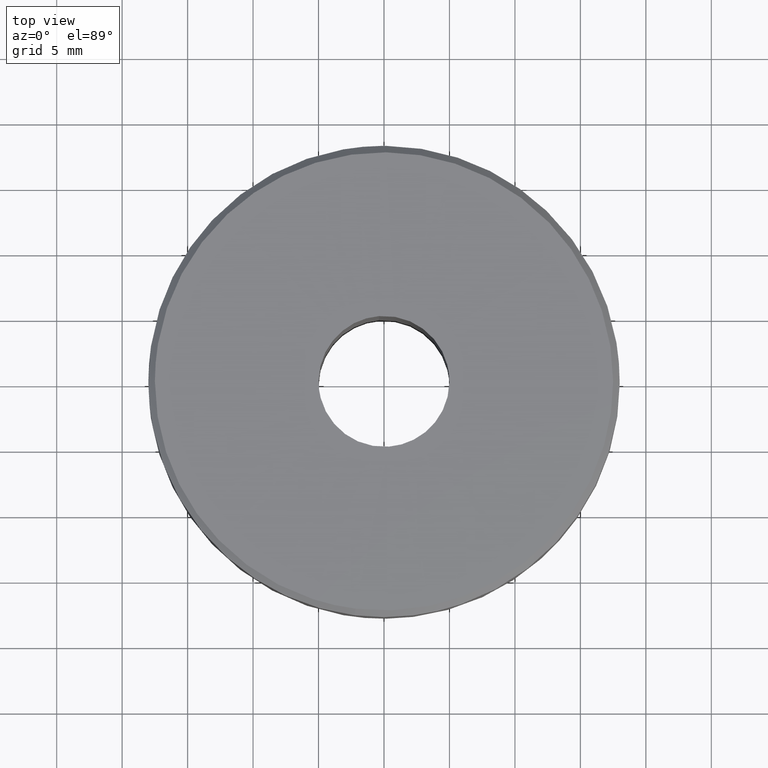
[diagram: clean part render]
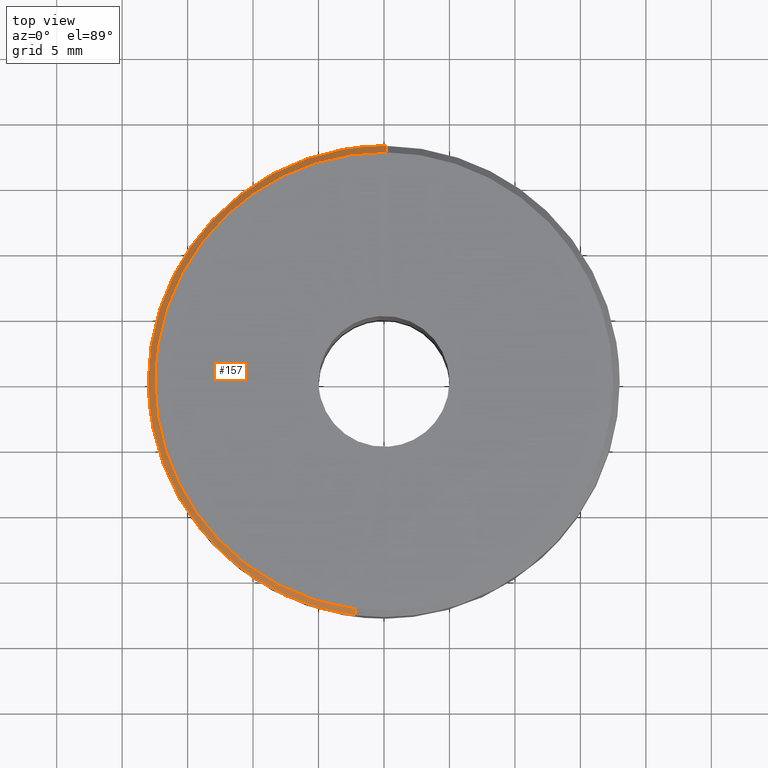
[diagram: same view with one face highlighted and labeled with its STEP entity id]
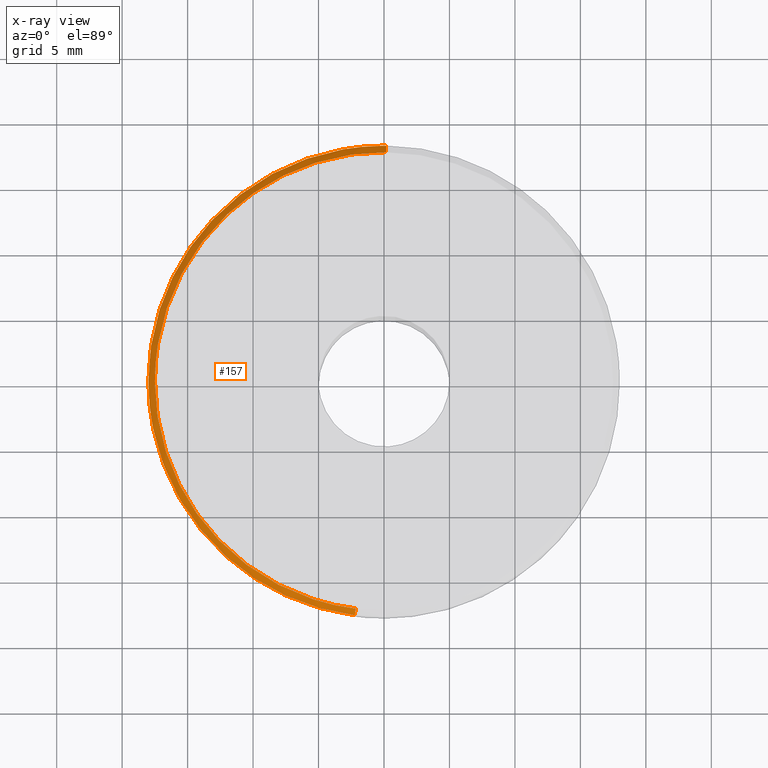
[diagram: x-ray of the same camera — body ghosted, the highlighted face saturated]
A machine part, top view. The second image highlights one B-rep face of the part: STEP entity #157.
The next image is the same camera in x-ray: the body ghosted, the highlighted face saturated — about 0% of this face is hidden behind the body in this view.
In plain terms, the highlighted face is a freeform B-spline surface patch.
Its self-contained STEP definition (entity closure, byte-faithful):
#44=CARTESIAN_POINT('',(-2.170688436371020,-17.352255414274158,23.012499999999999));
#45=CARTESIAN_POINT('',(-17.622727873411552,-15.419275376604753,23.012500000000006));
#46=CARTESIAN_POINT('',(-17.486834129584739,0.152605289527814,23.012499999999999));
#47=CARTESIAN_POINT('',(-17.334228840056934,17.639439419112552,23.012500000000006));
#48=CARTESIAN_POINT('',(0.152605289527814,17.486834129584739,23.012499999999999));
#49=CARTESIAN_POINT('',(-2.235894427463576,-17.873505259724336,22.487187500000001));
#50=CARTESIAN_POINT('',(-18.152102525934822,-15.882459828142810,22.487187500000001));
#51=CARTESIAN_POINT('',(-18.012126627294339,0.157189447706803,22.487187500000001));
#52=CARTESIAN_POINT('',(-17.854937179587541,18.169316075001138,22.487187500000005));
#53=CARTESIAN_POINT('',(0.157189447706803,18.012126627294339,22.487187500000001));
#61=(BOUNDED_SURFACE()B_SPLINE_SURFACE(2,1,((#44,#49),(#45,#50),(#46,#51),(#47,#52),(#48,#53)),.UNSPECIFIED.,.F.,.F.,.U.)B_SPLINE_SURFACE_WITH_KNOTS((3,2,3),(2,2),(0.0,27.457036541059701,57.301641476994170),(0.0,1.0),.UNSPECIFIED.)GEOMETRIC_REPRESENTATION_ITEM()RATIONAL_B_SPLINE_SURFACE(((0.956886118190660,0.956886118190660),(0.730538238691624,0.730538238691624),(1.0,1.0),(0.707106781186548,0.707106781186548),(1.0,1.0)))REPRESENTATION_ITEM('')SURFACE());
#62=CARTESIAN_POINT('',(-2.234304037480998,-17.860791848859769,22.499999999994461));
#63=VERTEX_POINT('',#62);
#64=CARTESIAN_POINT('',(-18.0,0.0,22.500000000000000));
#65=VERTEX_POINT('',#64);
#66=CARTESIAN_POINT('',(-2.234304037480997,-17.860791848859773,22.499999999994454));
#67=CARTESIAN_POINT('',(-18.0,-15.888574802626337,22.500000000000007));
#68=CARTESIAN_POINT('',(-18.0,0.0,22.500000000000000));
#76=(BOUNDED_CURVE()B_SPLINE_CURVE(2,(#66,#67,#68),.UNSPECIFIED.,.F.,.U.)B_SPLINE_CURVE_WITH_KNOTS((3,3),(0.771473928971520,1.0),.UNSPECIFIED.)CURVE()GEOMETRIC_REPRESENTATION_ITEM()RATIONAL_B_SPLINE_CURVE((0.954005430273129,0.732265053894708,1.0))REPRESENTATION_ITEM(''));
#77=EDGE_CURVE('',#63,#65,#76,.T.);
#78=ORIENTED_EDGE('',*,*,#77,.F.);
#79=CARTESIAN_POINT('',(-2.172240036428871,-17.364658741946990,22.999999999996010));
#80=VERTEX_POINT('',#79);
#81=CARTESIAN_POINT('',(-2.172240036428871,-17.364658741946990,22.999999999996010));
#82=CARTESIAN_POINT('',(-2.234304037480998,-17.860791848859769,22.499999999994461));
#83=QUASI_UNIFORM_CURVE('',1,(#81,#82),.UNSPECIFIED.,.F.,.U.);
#84=EDGE_CURVE('',#80,#63,#83,.T.);
#85=ORIENTED_EDGE('',*,*,#84,.F.);
#86=CARTESIAN_POINT('',(-17.500000000000000,0.0,23.0));
#87=VERTEX_POINT('',#86);
#88=CARTESIAN_POINT('',(-17.500000000000000,0.0,23.0));
#89=CARTESIAN_POINT('',(-17.500000000000000,-15.447225502572767,23.0));
#90=CARTESIAN_POINT('',(-2.172240036428871,-17.364658741946986,22.999999999996010));
#98=(BOUNDED_CURVE()B_SPLINE_CURVE(2,(#88,#89,#90),.UNSPECIFIED.,.F.,.U.)B_SPLINE_CURVE_WITH_KNOTS((3,3),(0.500000000000000,0.728526071028690),.UNSPECIFIED.)CURVE()GEOMETRIC_REPRESENTATION_ITEM()RATIONAL_B_SPLINE_CURVE((1.0,0.732265053894462,0.954005430273536))REPRESENTATION_ITEM(''));
#99=EDGE_CURVE('',#87,#80,#98,.T.);
#100=ORIENTED_EDGE('',*,*,#99,.F.);
#101=CARTESIAN_POINT('',(0.152714371254918,17.499333653627261,22.999999999995470));
#102=VERTEX_POINT('',#101);
#103=CARTESIAN_POINT('',(0.152714371254919,17.499333653627257,22.999999999995470));
#104=CARTESIAN_POINT('',(0.076358639395615,17.499999999999996,23.000000000000004));
#105=CARTESIAN_POINT('',(0.0,17.500000000000000,23.0));
#106=CARTESIAN_POINT('',(-17.499999999999996,17.499999999999996,22.999999999999993));
#107=CARTESIAN_POINT('',(-17.500000000000000,0.0,23.0));
#115=(BOUNDED_CURVE()B_SPLINE_CURVE(2,(#103,#104,#105,#106,#107),.UNSPECIFIED.,.F.,.U.)B_SPLINE_CURVE_WITH_KNOTS((3,2,3),(0.248460105664342,0.250000000000000,0.500000000000000),.UNSPECIFIED.)CURVE()GEOMETRIC_REPRESENTATION_ITEM()RATIONAL_B_SPLINE_CURVE((0.996414028098853,0.998195901565586,1.0,0.707106781186548,1.0))REPRESENTATION_ITEM(''));
#116=EDGE_CURVE('',#102,#87,#115,.T.);
#117=ORIENTED_EDGE('',*,*,#116,.F.);
#118=CARTESIAN_POINT('',(0.157077639026141,17.999314615162131,22.499999999992468));
#119=VERTEX_POINT('',#118);
#120=CARTESIAN_POINT('',(0.152714371254918,17.499333653627261,22.999999999995470));
#121=CARTESIAN_POINT('',(0.157077639026141,17.999314615162131,22.499999999992468));
#122=QUASI_UNIFORM_CURVE('',1,(#120,#121),.UNSPECIFIED.,.F.,.U.);
#123=EDGE_CURVE('',#102,#119,#122,.T.);
#124=ORIENTED_EDGE('',*,*,#123,.T.);
#125=CARTESIAN_POINT('',(-0.157065289093424,17.999314722922350,22.500000000000039));
#126=VERTEX_POINT('',#125);
#127=CARTESIAN_POINT('',(-0.157065289093424,17.999314722922346,22.500000000000036));
#128=CARTESIAN_POINT('',(-0.078534139481322,18.0,22.499999999999996));
#129=CARTESIAN_POINT('',(0.0,18.0,22.500000000000000));
#130=CARTESIAN_POINT('',(0.078540314827987,18.0,22.500000000000000));
#131=CARTESIAN_POINT('',(0.157077639026141,17.999314615162131,22.499999999992461));
#139=(BOUNDED_CURVE()B_SPLINE_CURVE(2,(#127,#128,#129,#130,#131),.UNSPECIFIED.,.F.,.U.)B_SPLINE_CURVE_WITH_KNOTS((3,2,3),(0.248460226521948,0.250000000000000,0.251539894336071),.UNSPECIFIED.)CURVE()GEOMETRIC_REPRESENTATION_ITEM()RATIONAL_B_SPLINE_CURVE((0.996414307797352,0.998196043159079,1.0,0.998195901565103,0.996414028097898))REPRESENTATION_ITEM(''));
#140=EDGE_CURVE('',#126,#119,#139,.T.);
#141=ORIENTED_EDGE('',*,*,#140,.F.);
#142=CARTESIAN_POINT('',(-18.0,0.0,22.500000000000000));
#143=CARTESIAN_POINT('',(-18.000000000000004,17.843614034217900,22.499999999999993));
#144=CARTESIAN_POINT('',(-0.157065289093424,17.999314722922346,22.500000000000036));
#152=(BOUNDED_CURVE()B_SPLINE_CURVE(2,(#142,#143,#144),.UNSPECIFIED.,.F.,.U.)B_SPLINE_CURVE_WITH_KNOTS((3,3),(0.0,0.248460226521948),.UNSPECIFIED.)CURVE()GEOMETRIC_REPRESENTATION_ITEM()RATIONAL_B_SPLINE_CURVE((1.0,0.708910738027468,0.996414307797352))REPRESENTATION_ITEM(''));
#153=EDGE_CURVE('',#65,#126,#152,.T.);
#154=ORIENTED_EDGE('',*,*,#153,.F.);
#155=EDGE_LOOP('',(#78,#85,#100,#117,#124,#141,#154));
#156=FACE_OUTER_BOUND('',#155,.T.);
#157=ADVANCED_FACE('',(#156),#61,.T.);